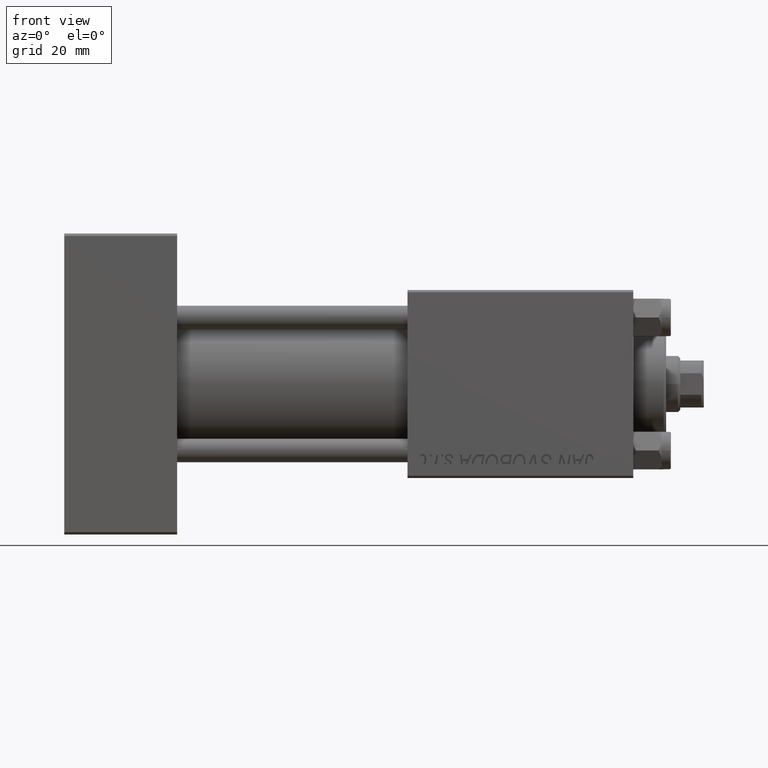
[diagram: clean part render]
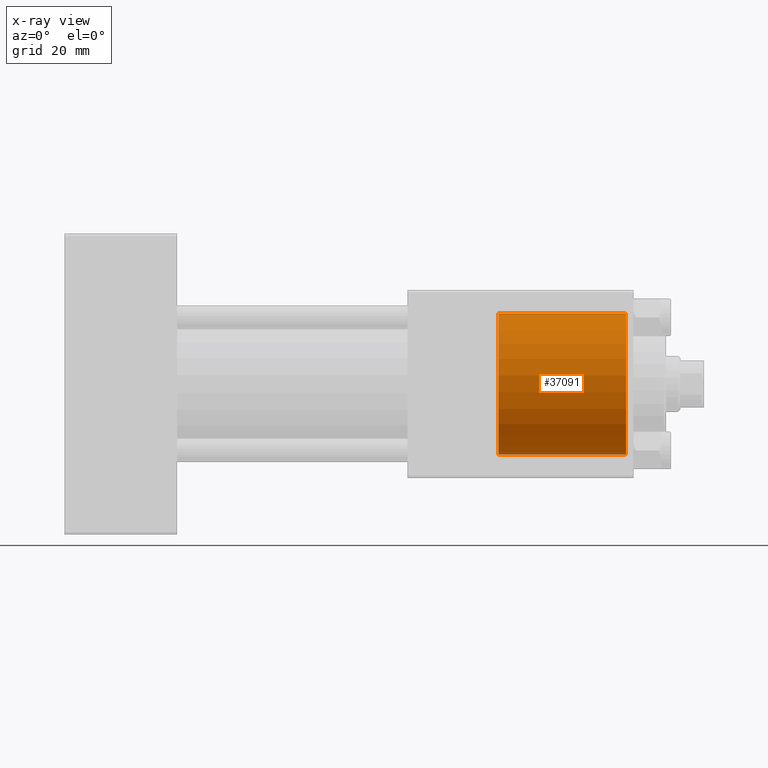
[diagram: x-ray — body ghosted, one internal face saturated and labeled with its STEP entity id]
A machine part, front view, then the same camera in x-ray: the body is ghosted and one INTERNAL B-rep face — a face not visible from any outside direction — is saturated and labeled: STEP entity #37091.
In plain terms, the highlighted cylindrical surface (partial cylindrical patch) has radius 15 mm, axis along (1, 0, 0).
Its self-contained STEP definition (entity closure, byte-faithful):
#2393 = CARTESIAN_POINT ( 'NONE',  ( 119.5000000000000000, 0.000000000000000000, -15.00000000000000000 ) ) ;
#3217 = ORIENTED_EDGE ( 'NONE', *, *, #42406, .F. ) ;
#3940 = FACE_OUTER_BOUND ( 'NONE', #16588, .T. ) ;
#6611 = DIRECTION ( 'NONE',  ( 1.000000000000000000, -0.000000000000000000, -0.000000000000000000 ) ) ;
#6740 = DIRECTION ( 'NONE',  ( 0.000000000000000000, 0.000000000000000000, 1.000000000000000000 ) ) ;
#9130 = ORIENTED_EDGE ( 'NONE', *, *, #40740, .T. ) ;
#10918 = DIRECTION ( 'NONE',  ( 1.000000000000000000, -0.000000000000000000, -0.000000000000000000 ) ) ;
#11795 = DIRECTION ( 'NONE',  ( 0.000000000000000000, 0.000000000000000000, -1.000000000000000000 ) ) ;
#13357 = DIRECTION ( 'NONE',  ( 0.000000000000000000, 0.000000000000000000, -1.000000000000000000 ) ) ;
#13603 = DIRECTION ( 'NONE',  ( 1.000000000000000000, 0.000000000000000000, 0.000000000000000000 ) ) ;
#14705 = CARTESIAN_POINT ( 'NONE',  ( 92.30000000000001137, 1.836970198721029589E-15, 15.00000000000000000 ) ) ;
#15584 = CARTESIAN_POINT ( 'NONE',  ( 92.30000000000001137, 0.000000000000000000, 0.000000000000000000 ) ) ;
#15740 = VERTEX_POINT ( 'NONE', #2393 ) ;
#16066 = CYLINDRICAL_SURFACE ( 'NONE', #33269, 15.00000000000000000 ) ;
#16588 = EDGE_LOOP ( 'NONE', ( #3217, #40070, #9130, #33334 ) ) ;
#18768 = EDGE_CURVE ( 'NONE', #29346, #19360, #49244, .T. ) ;
#19360 = VERTEX_POINT ( 'NONE', #44092 ) ;
#21771 = VERTEX_POINT ( 'NONE', #33973 ) ;
#21886 = DIRECTION ( 'NONE',  ( 1.000000000000000000, 0.000000000000000000, 0.000000000000000000 ) ) ;
#21927 = AXIS2_PLACEMENT_3D ( 'NONE', #24021, #13603, #13357 ) ;
#22096 = AXIS2_PLACEMENT_3D ( 'NONE', #44334, #21886, #6740 ) ;
#22340 = VECTOR ( 'NONE', #6611, 1000.000000000000000 ) ;
#22365 = EDGE_CURVE ( 'NONE', #21771, #15740, #38630, .T. ) ;
#22724 = CIRCLE ( 'NONE', #21927, 15.00000000000000000 ) ;
#23026 = CARTESIAN_POINT ( 'NONE',  ( 92.30000000000001137, 0.000000000000000000, -15.00000000000000000 ) ) ;
#24021 = CARTESIAN_POINT ( 'NONE',  ( 92.30000000000001137, 0.000000000000000000, 0.000000000000000000 ) ) ;
#29346 = VERTEX_POINT ( 'NONE', #35607 ) ;
#30957 = DIRECTION ( 'NONE',  ( 1.000000000000000000, -0.000000000000000000, -0.000000000000000000 ) ) ;
#33269 = AXIS2_PLACEMENT_3D ( 'NONE', #15584, #30957, #11795 ) ;
#33334 = ORIENTED_EDGE ( 'NONE', *, *, #22365, .F. ) ;
#33973 = CARTESIAN_POINT ( 'NONE',  ( 92.30000000000001137, 0.000000000000000000, -15.00000000000000000 ) ) ;
#35607 = CARTESIAN_POINT ( 'NONE',  ( 92.30000000000001137, 1.836970198721029589E-15, 15.00000000000000000 ) ) ;
#37091 = ADVANCED_FACE ( 'NONE', ( #3940 ), #16066, .F. ) ;
#38630 = LINE ( 'NONE', #23026, #42566 ) ;
#40070 = ORIENTED_EDGE ( 'NONE', *, *, #18768, .T. ) ;
#40740 = EDGE_CURVE ( 'NONE', #19360, #15740, #49453, .T. ) ;
#42406 = EDGE_CURVE ( 'NONE', #29346, #21771, #22724, .T. ) ;
#42566 = VECTOR ( 'NONE', #10918, 1000.000000000000000 ) ;
#44092 = CARTESIAN_POINT ( 'NONE',  ( 119.5000000000000000, 1.836970198721029589E-15, 15.00000000000000000 ) ) ;
#44334 = CARTESIAN_POINT ( 'NONE',  ( 119.5000000000000000, 0.000000000000000000, 0.000000000000000000 ) ) ;
#49244 = LINE ( 'NONE', #14705, #22340 ) ;
#49453 = CIRCLE ( 'NONE', #22096, 15.00000000000000000 ) ;